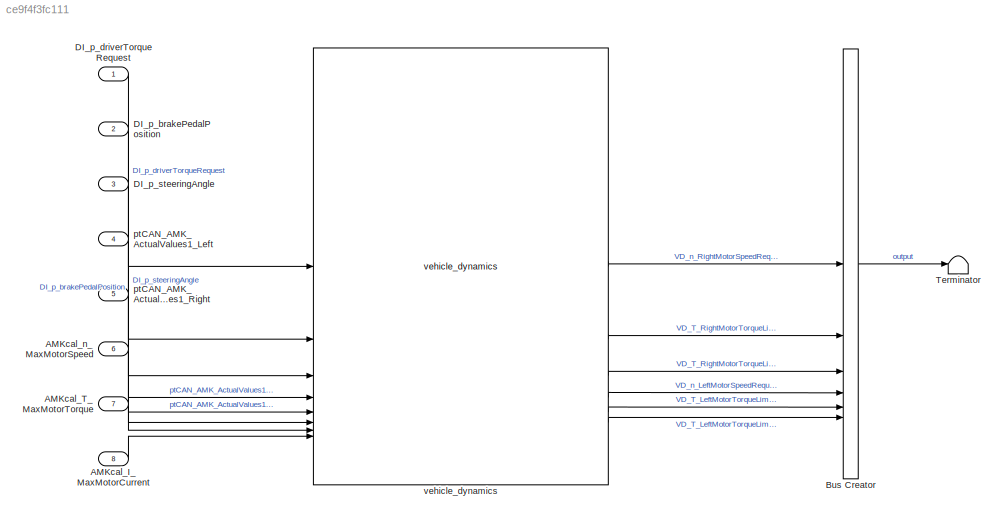
MODEL slx_ce9f4f3fc111
KIND model
CONFIG AbsTol = auto
CONFIG EnableMultiTasking = off
CONFIG FixedStep = 1e-3
CONFIG MaxStep = auto
CONFIG MinStep = auto
CONFIG RelTol = 1e-3
CONFIG SampleTimeConstraint = Unconstrained
CONFIG SolverName = FixedStepAuto
CONFIG StartTime = 0.0
CONFIG StopTime = 10.0
BLOCK [Inport] AMKcal_I_MaxMotorCurrent
  OutDataTypeStr = single
  Port = 8
BLOCK [Inport] AMKcal_T_MaxMotorTorque
  OutDataTypeStr = single
  Port = 7
BLOCK [Inport] AMKcal_n_MaxMotorSpeed
  OutDataTypeStr = single
  Port = 6
BLOCK [BusCreator] Bus Creator
  DisplayOption = bar
  InheritFromInputs = on
  Inputs = 6
BLOCK [Inport] DI_p_brakePedalPosition
  OutDataTypeStr = single
  Port = 2
BLOCK [Inport] DI_p_driverTorqueRequest
BLOCK [Inport] DI_p_steeringAngle
  OutDataTypeStr = single
  Port = 3
BLOCK [Terminator] Terminator
BLOCK [Inport] ptCAN_AMK_ActualValues1_Left
  OutDataTypeStr = Bus: ptCAN_AMK_ActualValues1_Left_bus
  Port = 4
BLOCK [Inport] ptCAN_AMK_ActualValues1_Right
  OutDataTypeStr = Bus: ptCAN_AMK_ActualValues1_Right_bus
  Port = 5
BLOCK [Reference] vehicle_dynamics  REF=vehicle_dynamics_lib/vehicle_dynamics  (lib defined in slx_e99204e99f18)
  SourceBlock = vehicle_dynamics_lib/vehicle_dynamics
  SourceType = SubSystem
LINE AMKcal_I_MaxMotorCurrent:1 -> vehicle_dynamics:8
LINE AMKcal_T_MaxMotorTorque:1 -> vehicle_dynamics:7
LINE AMKcal_n_MaxMotorSpeed:1 -> vehicle_dynamics:6
LINE Bus Creator:1 -> Terminator:1
LINE DI_p_brakePedalPosition:1 -> vehicle_dynamics:2
LINE DI_p_driverTorqueRequest:1 -> vehicle_dynamics:1
LINE DI_p_steeringAngle:1 -> vehicle_dynamics:3
LINE ptCAN_AMK_ActualValues1_Left:1 -> vehicle_dynamics:4
LINE ptCAN_AMK_ActualValues1_Right:1 -> vehicle_dynamics:5
LINE vehicle_dynamics:1 -> Bus Creator:1
LINE vehicle_dynamics:2 -> Bus Creator:2
LINE vehicle_dynamics:3 -> Bus Creator:3
LINE vehicle_dynamics:4 -> Bus Creator:4
LINE vehicle_dynamics:5 -> Bus Creator:5
LINE vehicle_dynamics:6 -> Bus Creator:6
